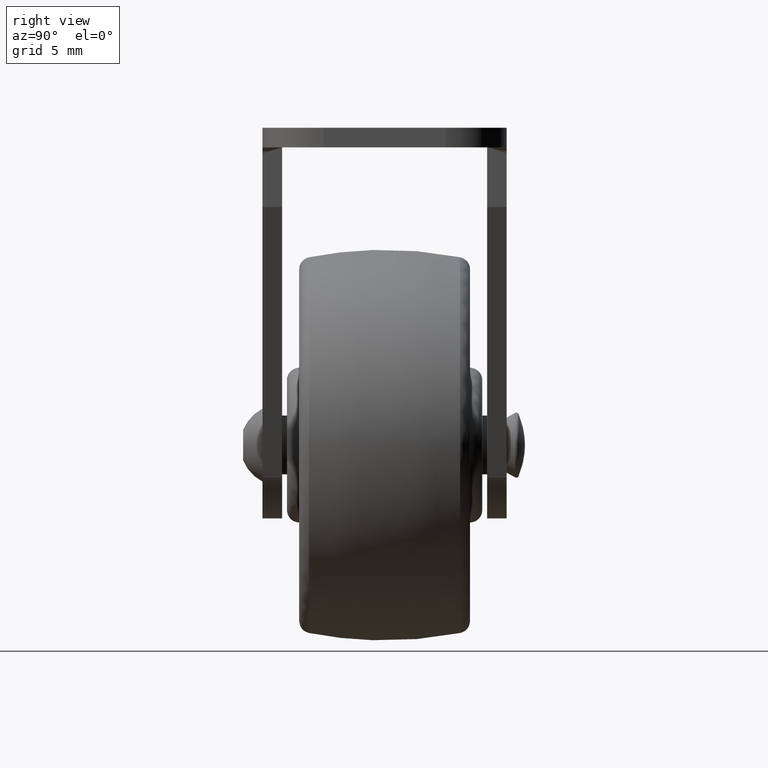
[diagram: clean part render]
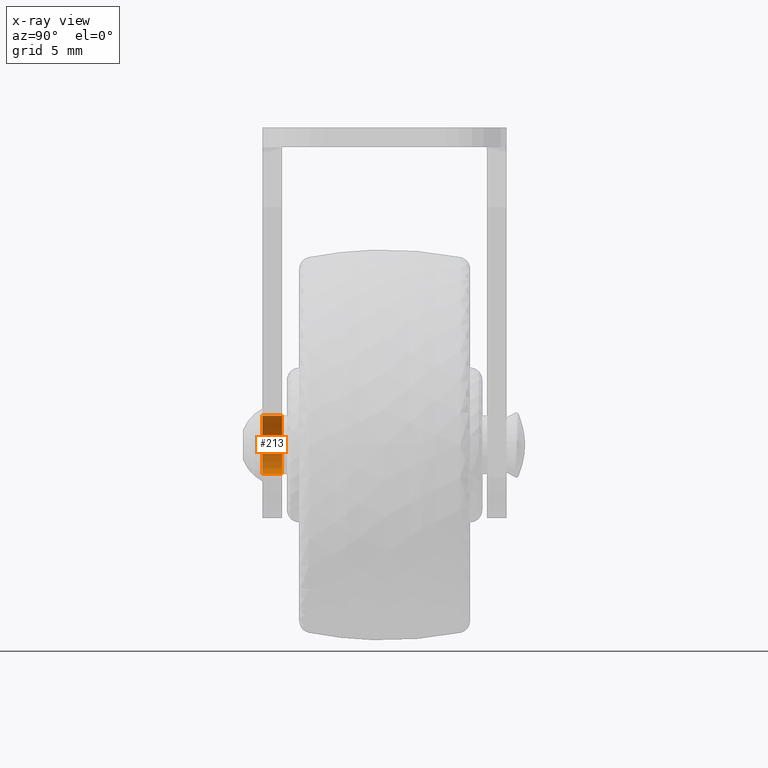
[diagram: x-ray — body ghosted, one internal face saturated and labeled with its STEP entity id]
A machine part, right view, then the same camera in x-ray: the body is ghosted and one INTERNAL B-rep face — a face not visible from any outside direction — is saturated and labeled: STEP entity #213.
In plain terms, the highlighted cylindrical surface (edge-blend (fillet) strip) has radius 2.4 mm, axis along (0, 1, 0).
Its self-contained STEP definition (entity closure, byte-faithful):
#213=ADVANCED_FACE('',(#892),#891,.F.);
#891=CYLINDRICAL_SURFACE('',#1786,2.40000000000E+00);
#892=FACE_OUTER_BOUND('',#1787,.T.);
#1783=CARTESIAN_POINT('',(0.00000000000E+00,9.90000000000E+02,0.00000000000E+00));
#1784=DIRECTION('',(-0.00000000000E+00,1.00000000000E+00,-0.00000000000E+00));
#1785=DIRECTION('',(1.22464679915E-16,0.00000000000E+00,-1.00000000000E+00));
#1786=AXIS2_PLACEMENT_3D('',#1783,#1784,#1785);
#1787=EDGE_LOOP('',(#2283,#2284,#2285,#2286));
#2283=ORIENTED_EDGE('',*,*,#2524,.T.);
#2284=ORIENTED_EDGE('',*,*,#2525,.T.);
#2285=ORIENTED_EDGE('',*,*,#2499,.T.);
#2286=ORIENTED_EDGE('',*,*,#2526,.F.);
#2499=EDGE_CURVE('',#3444,#3445,#3446,.T.);
#2524=EDGE_CURVE('',#3598,#3597,#3605,.T.);
#2525=EDGE_CURVE('',#3597,#3444,#3611,.T.);
#2526=EDGE_CURVE('',#3598,#3445,#3617,.T.);
#3444=VERTEX_POINT('',#4390);
#3445=VERTEX_POINT('',#4391);
#3446=CIRCLE('',#4395,2.40000000000E+00);
#3597=VERTEX_POINT('',#4483);
#3598=VERTEX_POINT('',#4484);
#3605=CIRCLE('',#4492,2.40000000000E+00);
#3611=(BOUNDED_CURVE() B_SPLINE_CURVE(1,(#4493,#4494),.UNSPECIFIED.,.F.,.F.) B_SPLINE_CURVE_WITH_KNOTS((2,2),(8.33333134656E-02,9.16666653270E-01),.UNSPECIFIED.) CURVE() GEOMETRIC_REPRESENTATION_ITEM() RATIONAL_B_SPLINE_CURVE((1.00000000000E+00,1.00000000000E+00)) REPRESENTATION_ITEM('') );
#3617=(BOUNDED_CURVE() B_SPLINE_CURVE(1,(#4495,#4496),.UNSPECIFIED.,.F.,.F.) B_SPLINE_CURVE_WITH_KNOTS((2,2),(8.33333333333E-02,9.16666666667E-01),.UNSPECIFIED.) CURVE() GEOMETRIC_REPRESENTATION_ITEM() RATIONAL_B_SPLINE_CURVE((7.50000000000E-01,7.50000000000E-01)) REPRESENTATION_ITEM('') );
#4390=CARTESIAN_POINT('',(1.48029736617E-16,-8.40000000000E+00,-2.40000000000E+00));
#4391=CARTESIAN_POINT('',(0.00000000000E+00,-8.40000000000E+00,2.40000000000E+00));
#4392=CARTESIAN_POINT('',(0.00000000000E+00,-8.40000000000E+00,0.00000000000E+00));
#4393=DIRECTION('',(0.00000000000E+00,1.00000000000E+00,0.00000000000E+00));
#4394=DIRECTION('',(-1.22460635382E-16,0.00000000000E+00,1.00000000000E+00));
#4395=AXIS2_PLACEMENT_3D('',#4392,#4393,#4394);
#4483=CARTESIAN_POINT('',(2.96059473233E-16,-1.00000000000E+01,-2.40000000000E+00));
#4484=CARTESIAN_POINT('',(0.00000000000E+00,-1.00000000000E+01,2.40000000000E+00));
#4489=CARTESIAN_POINT('',(0.00000000000E+00,-1.00000000000E+01,0.00000000000E+00));
#4490=DIRECTION('',(-0.00000000000E+00,-1.00000000000E+00,0.00000000000E+00));
#4491=DIRECTION('',(-1.22460635382E-16,0.00000000000E+00,1.00000000000E+00));
#4492=AXIS2_PLACEMENT_3D('',#4489,#4490,#4491);
#4493=CARTESIAN_POINT('',(2.93915231795E-16,-1.00000000381E+01,-2.40000000000E+00));
#4494=CARTESIAN_POINT('',(2.93915231795E-16,-8.40000002572E+00,-2.40000000000E+00));
#4495=CARTESIAN_POINT('',(-1.48029736617E-16,-1.00000000000E+01,2.40000000000E+00));
#4496=CARTESIAN_POINT('',(-1.48029736617E-16,-8.40000000000E+00,2.40000000000E+00));